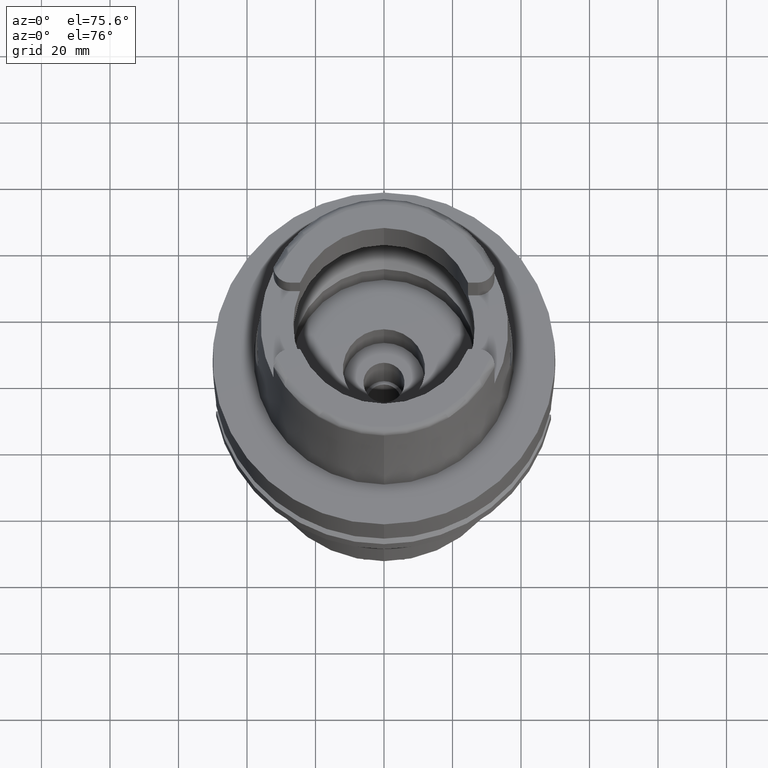
[diagram: clean part render]
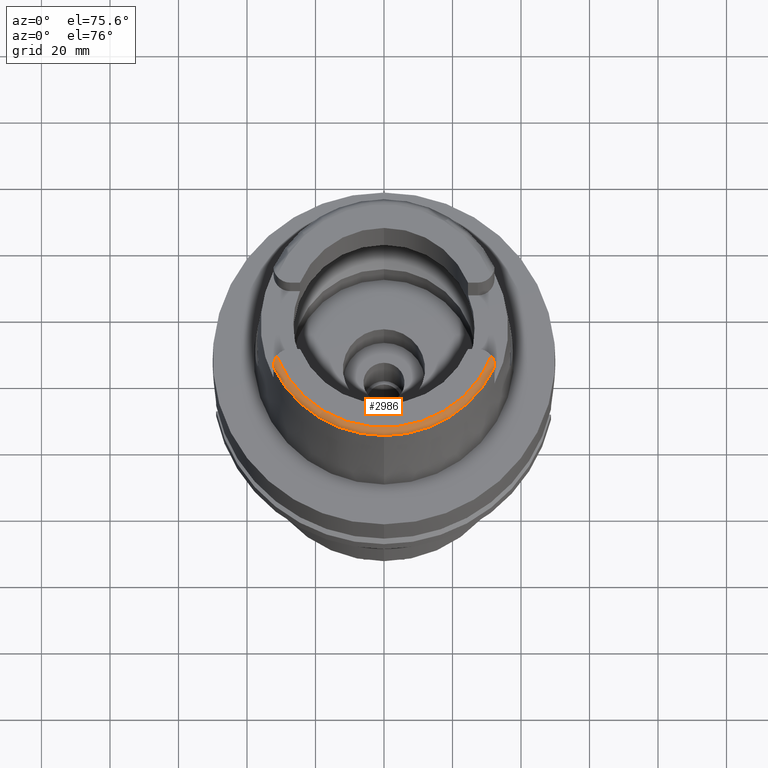
[diagram: same view with one face highlighted and labeled with its STEP entity id]
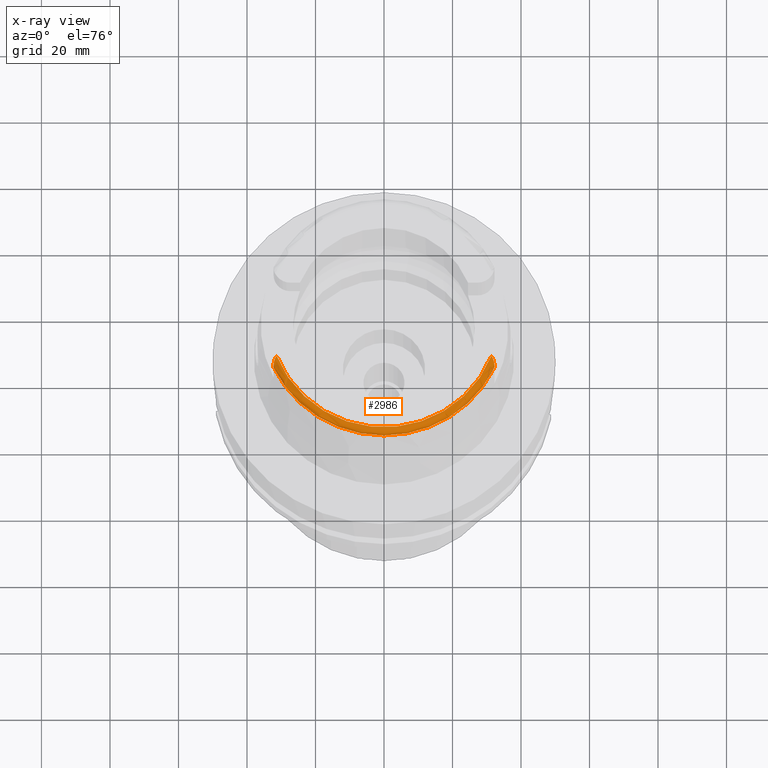
[diagram: x-ray of the same camera — body ghosted, the highlighted face saturated]
A machine part, auxiliary view. The second image highlights one B-rep face of the part: STEP entity #2986.
The next image is the same camera in x-ray: the body ghosted, the highlighted face saturated — about 0% of this face is hidden behind the body in this view.
In plain terms, the highlighted toroidal blend (fillet) surface has major radius 33.5974 mm and minor (blend) radius 2 mm.
Its self-contained STEP definition (entity closure, byte-faithful):
#199=CARTESIAN_POINT('',(0.E0,0.E0,5.E1));
#200=DIRECTION('',(0.E0,0.E0,-1.E0));
#201=DIRECTION('',(9.332215253018E-1,-3.593015233942E-1,0.E0));
#202=AXIS2_PLACEMENT_3D('',#199,#200,#201);
#221=CARTESIAN_POINT('',(-3.224999491821E1,-1.506448486796E1,4.809973211292E1));
#222=CARTESIAN_POINT('',(-3.224999491821E1,-1.505853187103E1,4.815011882791E1));
#223=CARTESIAN_POINT('',(-3.225000237150E1,-1.503782729162E1,4.824997652586E1));
#224=CARTESIAN_POINT('',(-3.224999932243E1,-1.497916029158E1,4.840035914293E1));
#225=CARTESIAN_POINT('',(-3.225E1,-1.492266728977E1,4.849774457542E1));
#226=CARTESIAN_POINT('',(-3.225E1,-1.489E1,4.854599893822E1));
#231=CARTESIAN_POINT('',(-3.225E1,-1.489E1,4.854599893822E1));
#232=CARTESIAN_POINT('',(-3.225E1,-1.484310621478E1,4.861526791465E1));
#233=CARTESIAN_POINT('',(-3.224872314212E1,-1.473216080960E1,4.875468016143E1));
#234=CARTESIAN_POINT('',(-3.223735351118E1,-1.451178322107E1,4.896859391142E1));
#235=CARTESIAN_POINT('',(-3.221015909172E1,-1.424515877796E1,4.917984822986E1));
#236=CARTESIAN_POINT('',(-3.215881757141E1,-1.393053106238E1,4.938856197364E1));
#237=CARTESIAN_POINT('',(-3.207421518807E1,-1.357195824467E1,4.958766908264E1));
#238=CARTESIAN_POINT('',(-3.194466020477E1,-1.317261586697E1,4.976729818067E1));
#239=CARTESIAN_POINT('',(-3.177245412352E1,-1.276897136687E1,4.990387557748E1));
#240=CARTESIAN_POINT('',(-3.156437310810E1,-1.238422976693E1,4.998520803348E1));
#241=CARTESIAN_POINT('',(-3.142403337986E1,-1.217081267696E1,5.E1));
#242=CARTESIAN_POINT('',(-3.135385269249E1,-1.207161079257E1,5.E1));
#247=CARTESIAN_POINT('',(3.135385269249E1,-1.207161079257E1,5.E1));
#248=CARTESIAN_POINT('',(3.142403391859E1,-1.217081343847E1,5.E1));
#249=CARTESIAN_POINT('',(3.156442827590E1,-1.238432524230E1,4.998519292085E1));
#250=CARTESIAN_POINT('',(3.177259338452E1,-1.276919609374E1,4.990384687878E1));
#251=CARTESIAN_POINT('',(3.194516581100E1,-1.317394220868E1,4.976678464739E1));
#252=CARTESIAN_POINT('',(3.207433237767E1,-1.357248854808E1,4.958736716981E1));
#253=CARTESIAN_POINT('',(3.215884131268E1,-1.393062277652E1,4.938851241861E1));
#254=CARTESIAN_POINT('',(3.221027657259E1,-1.424589275098E1,4.917936058292E1));
#255=CARTESIAN_POINT('',(3.223749370476E1,-1.451345399266E1,4.896719722773E1));
#256=CARTESIAN_POINT('',(3.224876520003E1,-1.473384153635E1,4.875281178337E1));
#257=CARTESIAN_POINT('',(3.225E1,-1.484369552897E1,4.861439741143E1));
#258=CARTESIAN_POINT('',(3.225E1,-1.489E1,4.854599893822E1));
#263=CARTESIAN_POINT('',(3.225E1,-1.489E1,4.854599893822E1));
#264=CARTESIAN_POINT('',(3.225E1,-1.492401709762E1,4.849575071189E1));
#265=CARTESIAN_POINT('',(3.225000073602E1,-1.498175062478E1,4.839533236082E1));
#266=CARTESIAN_POINT('',(3.224999742392E1,-1.503947525641E1,4.824410502822E1));
#267=CARTESIAN_POINT('',(3.225000552017E1,-1.505880825304E1,4.814735628166E1));
#268=CARTESIAN_POINT('',(3.225000552017E1,-1.506439825998E1,4.810004194739E1));
#273=CARTESIAN_POINT('',(0.E0,0.E0,4.809987853799E1));
#274=DIRECTION('',(0.E0,0.E0,-1.E0));
#275=DIRECTION('',(9.060280460805E-1,-4.232176505246E-1,0.E0));
#276=AXIS2_PLACEMENT_3D('',#273,#274,#275);
#281=CARTESIAN_POINT('',(0.E0,0.E0,4.809987853799E1));
#282=DIRECTION('',(0.E0,0.E0,-1.E0));
#283=DIRECTION('',(0.E0,-1.E0,0.E0));
#284=AXIS2_PLACEMENT_3D('',#281,#282,#283);
#2468=CARTESIAN_POINT('',(-3.135385269249E1,-1.207161079257E1,5.E1));
#2470=VERTEX_POINT('',#2468);
#2480=CARTESIAN_POINT('',(3.135385269249E1,-1.207161079257E1,5.E1));
#2481=VERTEX_POINT('',#2480);
#2504=VERTEX_POINT('',#231);
#2511=VERTEX_POINT('',#221);
#2512=VERTEX_POINT('',#258);
#2513=VERTEX_POINT('',#268);
#2514=CARTESIAN_POINT('',(1.065814103640E-14,-3.559494289391E1,
4.809987853799E1));
#2515=VERTEX_POINT('',#2514);
#2967=CARTESIAN_POINT('',(0.E0,0.E0,4.8E1));
#2968=DIRECTION('',(0.E0,0.E0,1.E0));
#2969=DIRECTION('',(-4.184165975220E-4,-9.999999124638E-1,0.E0));
#2970=AXIS2_PLACEMENT_3D('',#2967,#2968,#2969);
#2971=TOROIDAL_SURFACE('',#2970,3.359743838136E1,2.E0);
#2973=ORIENTED_EDGE('',*,*,#2972,.T.);
#2974=ORIENTED_EDGE('',*,*,#2958,.T.);
#2975=ORIENTED_EDGE('',*,*,#2947,.F.);
#2977=ORIENTED_EDGE('',*,*,#2976,.T.);
#2979=ORIENTED_EDGE('',*,*,#2978,.T.);
#2981=ORIENTED_EDGE('',*,*,#2980,.T.);
#2983=ORIENTED_EDGE('',*,*,#2982,.T.);
#2984=EDGE_LOOP('',(#2973,#2974,#2975,#2977,#2979,#2981,#2983));
#2985=FACE_OUTER_BOUND('',#2984,.F.);
#203=CIRCLE('',#202,3.359743838136E1);
#227=B_SPLINE_CURVE_WITH_KNOTS('',3,(#221,#222,#223,#224,#225,#226),
.UNSPECIFIED.,.F.,.F.,(4,1,1,4),(0.E0,3.333333333333E-1,6.666666666667E-1,1.E0),
.UNSPECIFIED.);
#243=B_SPLINE_CURVE_WITH_KNOTS('',3,(#231,#232,#233,#234,#235,#236,#237,#238,
#239,#240,#241,#242),.UNSPECIFIED.,.F.,.F.,(4,1,1,1,1,1,1,1,1,4),(0.E0,
1.111111111111E-1,2.222222222222E-1,3.333333333333E-1,4.444444444444E-1,
5.555555555556E-1,6.666666666667E-1,7.777777777778E-1,8.888888888889E-1,1.E0),
.UNSPECIFIED.);
#259=B_SPLINE_CURVE_WITH_KNOTS('',3,(#247,#248,#249,#250,#251,#252,#253,#254,
#255,#256,#257,#258),.UNSPECIFIED.,.F.,.F.,(4,1,1,1,1,1,1,1,1,4),(0.E0,
1.111111111111E-1,2.222222222222E-1,3.333333333333E-1,4.444444444444E-1,
5.555555555556E-1,6.666666666667E-1,7.777777777778E-1,8.888888888889E-1,1.E0),
.UNSPECIFIED.);
#269=B_SPLINE_CURVE_WITH_KNOTS('',3,(#263,#264,#265,#266,#267,#268),
.UNSPECIFIED.,.F.,.F.,(4,1,1,4),(0.E0,3.333333333333E-1,6.666666666667E-1,1.E0),
.UNSPECIFIED.);
#277=CIRCLE('',#276,3.559494289391E1);
#285=CIRCLE('',#284,3.559494289391E1);
#2947=EDGE_CURVE('',#2481,#2470,#203,.T.);
#2958=EDGE_CURVE('',#2504,#2470,#243,.T.);
#2972=EDGE_CURVE('',#2511,#2504,#227,.T.);
#2976=EDGE_CURVE('',#2481,#2512,#259,.T.);
#2978=EDGE_CURVE('',#2512,#2513,#269,.T.);
#2980=EDGE_CURVE('',#2513,#2515,#277,.T.);
#2982=EDGE_CURVE('',#2515,#2511,#285,.T.);
#2986=ADVANCED_FACE('',(#2985),#2971,.T.);